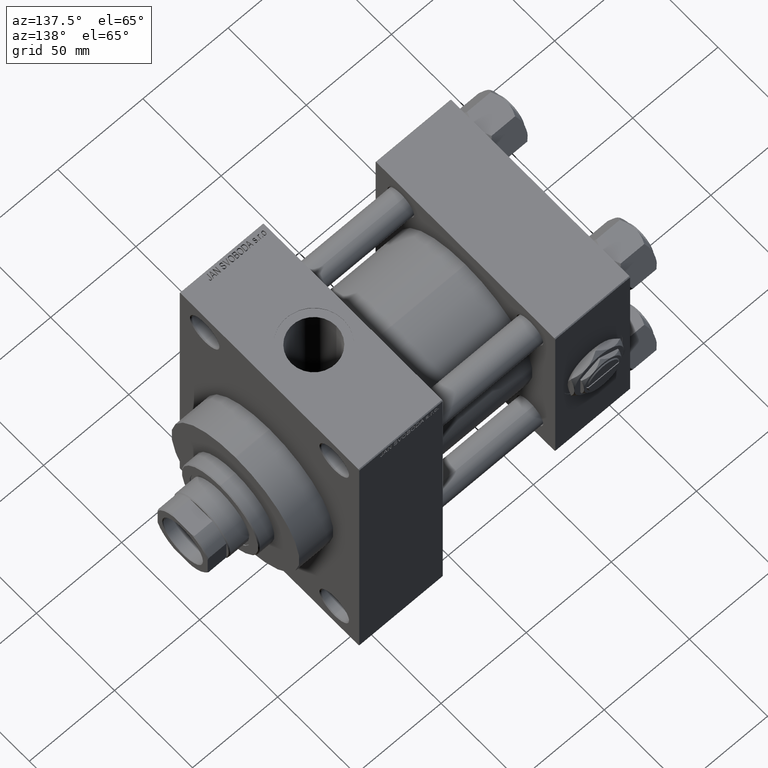
[diagram: clean part render]
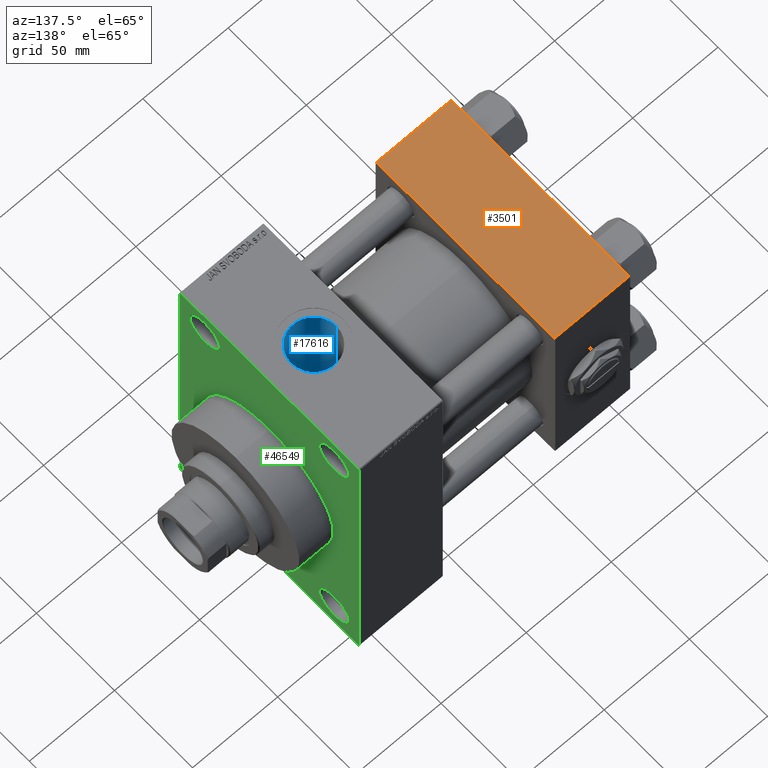
[diagram: same view with three faces highlighted in distinct colors, each labeled with its STEP entity id]
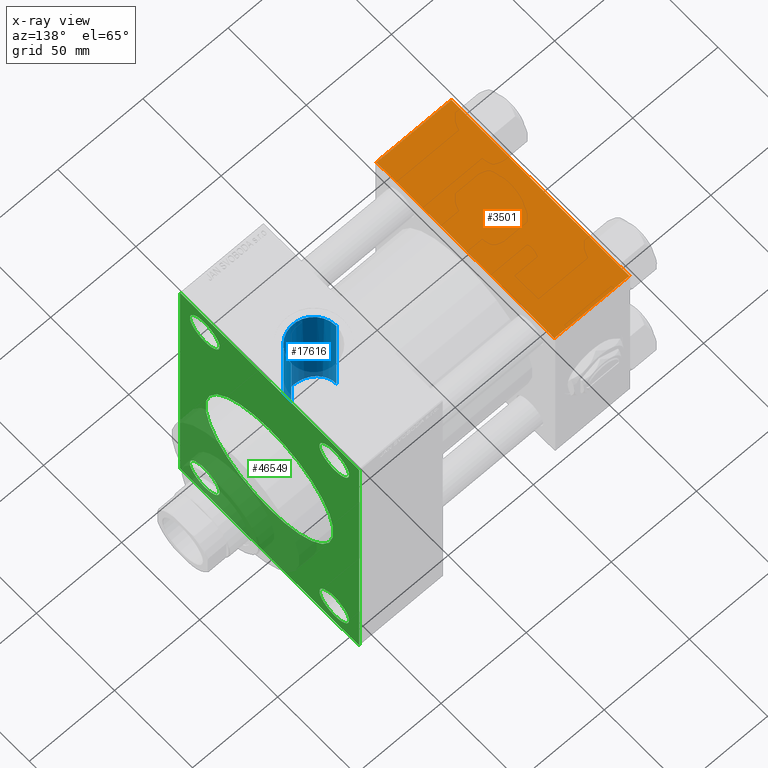
[diagram: x-ray of the same camera — body ghosted, the three highlighted faces saturated]
A machine part, auxiliary view with three faces highlighted in distinct colors.
The next image is the same camera in x-ray (body ghosted, the three faces saturated) — at least one of them is partly hidden behind the body in this view.
Their STEP definitions:

[orange] entity #3501 — the highlighted planar face has unit normal (0, 0, -1).
#778 = VECTOR ( 'NONE', #25886, 1000.000000000000000 ) ;
#2684 = VECTOR ( 'NONE', #26207, 1000.000000000000000 ) ;
#2835 = EDGE_CURVE ( 'NONE', #5143, #14152, #33585, .T. ) ;
#3501 = ADVANCED_FACE ( 'NONE', ( #7209 ), #47941, .F. ) ;
#5143 = VERTEX_POINT ( 'NONE', #12669 ) ;
#5993 = EDGE_CURVE ( 'NONE', #36024, #5143, #13287, .T. ) ;
#6273 = CARTESIAN_POINT ( 'NONE',  ( 0.000000000000000000, 57.00000000000000711, 57.50000000000000711 ) ) ;
#7209 = FACE_OUTER_BOUND ( 'NONE', #28770, .T. ) ;
#10891 = VERTEX_POINT ( 'NONE', #41833 ) ;
#11205 = VECTOR ( 'NONE', #43115, 1000.000000000000000 ) ;
#12669 = CARTESIAN_POINT ( 'NONE',  ( 0.000000000000000000, -57.00000000000003553, 57.49999999999999289 ) ) ;
#13287 = LINE ( 'NONE', #24471, #11205 ) ;
#14152 = VERTEX_POINT ( 'NONE', #34636 ) ;
#24471 = CARTESIAN_POINT ( 'NONE',  ( 0.000000000000000000, 57.49999999999999289, 57.50000000000000711 ) ) ;
#25615 = DIRECTION ( 'NONE',  ( -1.000000000000000000, 0.000000000000000000, 0.000000000000000000 ) ) ;
#25816 = DIRECTION ( 'NONE',  ( 0.000000000000000000, 1.000000000000000000, 1.206764157201257045E-16 ) ) ;
#25886 = DIRECTION ( 'NONE',  ( 1.000000000000000000, 0.000000000000000000, 0.000000000000000000 ) ) ;
#26207 = DIRECTION ( 'NONE',  ( 0.000000000000000000, -1.000000000000000000, -1.206764157201257045E-16 ) ) ;
#28105 = CARTESIAN_POINT ( 'NONE',  ( 0.000000000000000000, 57.00000000000000711, 57.50000000000000711 ) ) ;
#28770 = EDGE_LOOP ( 'NONE', ( #46519, #37196, #43465, #37504 ) ) ;
#29286 = DIRECTION ( 'NONE',  ( 0.000000000000000000, 1.206764157201257045E-16, -1.000000000000000000 ) ) ;
#33322 = AXIS2_PLACEMENT_3D ( 'NONE', #40215, #29286, #25816 ) ;
#33403 = CARTESIAN_POINT ( 'NONE',  ( 44.00000000000000000, 57.49999999999999289, 57.50000000000000711 ) ) ;
#33585 = LINE ( 'NONE', #37309, #778 ) ;
#34636 = CARTESIAN_POINT ( 'NONE',  ( 44.00000000000000000, -57.00000000000003553, 57.49999999999999289 ) ) ;
#36024 = VERTEX_POINT ( 'NONE', #28105 ) ;
#36885 = LINE ( 'NONE', #33403, #2684 ) ;
#37048 = LINE ( 'NONE', #6273, #46273 ) ;
#37196 = ORIENTED_EDGE ( 'NONE', *, *, #2835, .T. ) ;
#37309 = CARTESIAN_POINT ( 'NONE',  ( 44.00000000000000000, -57.00000000000003553, 57.49999999999999289 ) ) ;
#37504 = ORIENTED_EDGE ( 'NONE', *, *, #47775, .T. ) ;
#40215 = CARTESIAN_POINT ( 'NONE',  ( 44.00000000000000000, 57.49999999999999289, 57.50000000000000711 ) ) ;
#41833 = CARTESIAN_POINT ( 'NONE',  ( 44.00000000000000000, 57.00000000000000711, 57.50000000000000711 ) ) ;
#43115 = DIRECTION ( 'NONE',  ( 0.000000000000000000, -1.000000000000000000, -1.206764157201257045E-16 ) ) ;
#43465 = ORIENTED_EDGE ( 'NONE', *, *, #48566, .F. ) ;
#46273 = VECTOR ( 'NONE', #25615, 1000.000000000000000 ) ;
#46519 = ORIENTED_EDGE ( 'NONE', *, *, #5993, .T. ) ;
#47775 = EDGE_CURVE ( 'NONE', #10891, #36024, #37048, .T. ) ;
#47941 = PLANE ( 'NONE',  #33322 ) ;
#48566 = EDGE_CURVE ( 'NONE', #10891, #14152, #36885, .T. ) ;

[blue] entity #17616 — the highlighted cylindrical surface (edge-blend (fillet) strip) has radius 13.22 mm, axis along (0, 0, -1).
#187 = CARTESIAN_POINT ( 'NONE',  ( 143.4891427515922260, -8.055144359843698254, 35.08850325643998502 ) ) ;
#675 = CARTESIAN_POINT ( 'NONE',  ( 142.2683236211794053, -9.456123306897666225, 34.73961675537524485 ) ) ;
#727 = CARTESIAN_POINT ( 'NONE',  ( 119.7800000000000011, -1.086087741481131350E-14, 112.7999999999999829 ) ) ;
#1174 = CARTESIAN_POINT ( 'NONE',  ( 140.5356348427428941, -10.86845247487193866, 34.32099817610178860 ) ) ;
#2734 = VERTEX_POINT ( 'NONE', #36073 ) ;
#2779 = CARTESIAN_POINT ( 'NONE',  ( 126.2234386244904272, -11.39284893347530669, 28.29622104590160347 ) ) ;
#3030 = CARTESIAN_POINT ( 'NONE',  ( 120.6573864625835313, -4.834977203227584397, 30.12760479331261720 ) ) ;
#3927 = CARTESIAN_POINT ( 'NONE',  ( 145.5762609626179938, -4.092528755394254425, 35.76841822259746095 ) ) ;
#4544 = VERTEX_POINT ( 'NONE', #4939 ) ;
#4939 = CARTESIAN_POINT ( 'NONE',  ( 119.7800000000000011, -1.086087741481131350E-14, 89.79999999999998295 ) ) ;
#5511 = VECTOR ( 'NONE', #44385, 1000.000000000000000 ) ;
#6030 = CARTESIAN_POINT ( 'NONE',  ( 122.3230183722455138, -7.810479071823803743, 29.48561069758634190 ) ) ;
#6514 = CARTESIAN_POINT ( 'NONE',  ( 130.3349265898027909, -12.95789683450919760, 27.61085799903361959 ) ) ;
#6771 = CARTESIAN_POINT ( 'NONE',  ( 121.2888049357342339, -6.152518877594249425, 29.87635194004261407 ) ) ;
#7098 = AXIS2_PLACEMENT_3D ( 'NONE', #42313, #8307, #42802 ) ;
#7657 = CARTESIAN_POINT ( 'NONE',  ( 140.2234778375481312, -11.07831175427974379, 34.25365854375355212 ) ) ;
#7896 = CARTESIAN_POINT ( 'NONE',  ( 144.3340033522583497, -6.815280192024313344, 35.35054759480853903 ) ) ;
#8076 = EDGE_CURVE ( 'NONE', #4544, #34940, #31262, .T. ) ;
#8091 = VECTOR ( 'NONE', #46443, 1000.000000000000000 ) ;
#8307 = DIRECTION ( 'NONE',  ( -0.000000000000000000, -0.000000000000000000, -1.000000000000000000 ) ) ;
#8364 = DIRECTION ( 'NONE',  ( 0.000000000000000000, 0.000000000000000000, -1.000000000000000000 ) ) ;
#8383 = CARTESIAN_POINT ( 'NONE',  ( 142.7829955645538007, -8.922873027715086280, 34.88174282732672538 ) ) ;
#9253 = CARTESIAN_POINT ( 'NONE',  ( 123.2203172874389878, -8.947551960444558361, 29.16865783815234536 ) ) ;
#10223 = CARTESIAN_POINT ( 'NONE',  ( 128.9108056136110463, -12.58132053668447980, 27.78479549450236519 ) ) ;
#10465 = EDGE_CURVE ( 'NONE', #36487, #46177, #15302, .T. ) ;
#10767 = ORIENTED_EDGE ( 'NONE', *, *, #10465, .T. ) ;
#11371 = CARTESIAN_POINT ( 'NONE',  ( 137.2076088460675294, -12.53825874082049552, 33.74619856893892234 ) ) ;
#11471 = CARTESIAN_POINT ( 'NONE',  ( 120.0571384771800325, -2.704130925345935132, 30.38086169036233741 ) ) ;
#12318 = CARTESIAN_POINT ( 'NONE',  ( 146.2200000000000273, -9.241894346338509984E-15, 112.7999999999999829 ) ) ;
#12337 = CARTESIAN_POINT ( 'NONE',  ( 146.1544019816762443, -1.515576091947735238, 35.97576316411752373 ) ) ;
#12926 = CARTESIAN_POINT ( 'NONE',  ( 119.7800000000000011, 3.735152335644797090E-15, 30.50000000000000000 ) ) ;
#13442 = CARTESIAN_POINT ( 'NONE',  ( 135.7400000000000091, -12.93293470176048920, 27.62225914004861949 ) ) ;
#13577 = B_SPLINE_CURVE_WITH_KNOTS ( 'NONE', 3,
 ( #19541, #15804, #12337, #26762, #34698, #19778, #3927, #45411, #35181, #7896, #27485, #41673, #187, #8383, #675, #38434, #26518, #1174, #7657, #22791, #23277, #30958, #11371, #38673, #15564, #34457 ),
 .UNSPECIFIED., .F., .F.,
 ( 4, 2, 2, 2, 2, 2, 2, 2, 2, 2, 2, 2, 4 ),
 ( 0.01810032772820883984, 0.02036086973656282134, 0.02149114074073981903, 0.02262141174491681672, 0.02488195375327078782, 0.02601222475744779244, 0.02714249576162479360, 0.02940303776997874735, 0.03053330877415569300, 0.03166357977833263865, 0.03392412178668652301, 0.03505439279086347559, 0.03618466379504041430 ),
 .UNSPECIFIED. ) ;
#13940 = CARTESIAN_POINT ( 'NONE',  ( 133.7935798839907022, -13.23338642126744524, 27.47958799132000252 ) ) ;
#14186 = CARTESIAN_POINT ( 'NONE',  ( 130.8194127222318741, -13.04835861710616030, 27.56801161413727641 ) ) ;
#15167 = CARTESIAN_POINT ( 'NONE',  ( 119.9249887712033882, -1.968324950537289952, 30.43741289426054308 ) ) ;
#15296 = AXIS2_PLACEMENT_3D ( 'NONE', #22512, #37665, #49107 ) ;
#15302 = LINE ( 'NONE', #12318, #25511 ) ;
#15564 = CARTESIAN_POINT ( 'NONE',  ( 136.1130436000879058, -12.85390086390297171, 33.62713791769439808 ) ) ;
#15804 = CARTESIAN_POINT ( 'NONE',  ( 146.2200000000000273, -0.7632647160769636674, 36.00000000000000000 ) ) ;
#17167 = CARTESIAN_POINT ( 'NONE',  ( 134.7728848785530715, -13.13782983916530078, 27.52632580529387241 ) ) ;
#17565 = ORIENTED_EDGE ( 'NONE', *, *, #8076, .F. ) ;
#17616 = ADVANCED_FACE ( 'NONE', ( #26235 ), #30204, .F. ) ;
#18799 = EDGE_CURVE ( 'NONE', #22573, #34940, #20980, .T. ) ;
#18904 = CARTESIAN_POINT ( 'NONE',  ( 120.3336605936850816, -3.913778405700231833, 30.26347032903657919 ) ) ;
#19144 = CARTESIAN_POINT ( 'NONE',  ( 119.7800000000000153, -0.4934884814115302332, 30.50000000000000355 ) ) ;
#19541 = CARTESIAN_POINT ( 'NONE',  ( 146.2200000000000273, 4.408731805096607676E-15, 36.00000000000000000 ) ) ;
#19778 = CARTESIAN_POINT ( 'NONE',  ( 145.6891278366016707, -3.727918262643101333, 35.80834393886974709 ) ) ;
#20980 = B_SPLINE_CURVE_WITH_KNOTS ( 'NONE', 3,
 ( #13442, #17167, #13940, #25125, #40528, #14186, #6514, #28606, #10223, #25373, #24877, #2779, #40037, #43281, #9253, #6030, #21151, #36301, #6771, #3030, #18904, #11471, #45267, #15167, #33816, #38039, #19144, #22400 ),
 .UNSPECIFIED., .F., .F.,
 ( 4, 2, 2, 2, 2, 2, 2, 2, 2, 2, 2, 2, 2, 4 ),
 ( 0.01817501853417220065, 0.02113533814074457923, 0.02261549794403076852, 0.02409565774731695781, 0.02557581755060314363, 0.02705597735388933639, 0.03001629696046170803, 0.03297661656703407967, 0.03445677637032025509, 0.03593693617360642356, 0.03889725578017878826, 0.03963733568182188638, 0.04037741558346498449, 0.04185757538675117378 ),
 .UNSPECIFIED. ) ;
#21106 = ORIENTED_EDGE ( 'NONE', *, *, #35384, .T. ) ;
#21151 = CARTESIAN_POINT ( 'NONE',  ( 122.0434615026330221, -7.413683856886505552, 29.58833678893007146 ) ) ;
#21504 = CARTESIAN_POINT ( 'NONE',  ( 146.2200000000000273, -9.241894346338509984E-15, 89.79999999999998295 ) ) ;
#22400 = CARTESIAN_POINT ( 'NONE',  ( 119.7800000000000011, 3.735152335644797090E-15, 30.50000000000000000 ) ) ;
#22512 = CARTESIAN_POINT ( 'NONE',  ( 133.0000000000000000, -1.086087741481131350E-14, 112.7999999999999829 ) ) ;
#22573 = VERTEX_POINT ( 'NONE', #39981 ) ;
#22791 = CARTESIAN_POINT ( 'NONE',  ( 139.2689392453522430, -11.66300537238692314, 34.06086853725207675 ) ) ;
#23277 = CARTESIAN_POINT ( 'NONE',  ( 138.6039743856111386, -11.99680468088063812, 33.94354112271071955 ) ) ;
#23947 = CARTESIAN_POINT ( 'NONE',  ( 146.2200000000000273, 4.408731805096607676E-15, 36.00000000000000000 ) ) ;
#24877 = CARTESIAN_POINT ( 'NONE',  ( 127.5318111534776477, -12.04594987798921579, 28.02143598411491254 ) ) ;
#25125 = CARTESIAN_POINT ( 'NONE',  ( 132.3058823230128382, -13.21107762266989738, 27.49031640659328346 ) ) ;
#25303 = ORIENTED_EDGE ( 'NONE', *, *, #39950, .F. ) ;
#25373 = CARTESIAN_POINT ( 'NONE',  ( 127.9856869291995451, -12.24205054737453580, 27.93593895886880318 ) ) ;
#25511 = VECTOR ( 'NONE', #8364, 1000.000000000000000 ) ;
#26235 = FACE_OUTER_BOUND ( 'NONE', #28868, .T. ) ;
#26518 = CARTESIAN_POINT ( 'NONE',  ( 141.1396695021039136, -10.42376285600500552, 34.45866136291866155 ) ) ;
#26762 = CARTESIAN_POINT ( 'NONE',  ( 145.9615557504130550, -2.628343228240504370, 35.90584824798534669 ) ) ;
#27485 = CARTESIAN_POINT ( 'NONE',  ( 144.1369082302657887, -7.132913908065001252, 35.28770313236165634 ) ) ;
#28606 = CARTESIAN_POINT ( 'NONE',  ( 129.3806226936400776, -12.72437874985378947, 27.71924882183590810 ) ) ;
#28868 = EDGE_LOOP ( 'NONE', ( #47215, #10767, #21106, #25303, #31311, #17565 ) ) ;
#30204 = CYLINDRICAL_SURFACE ( 'NONE', #15296, 13.22000000000000952 ) ;
#30958 = CARTESIAN_POINT ( 'NONE',  ( 137.5622627804116576, -12.41346128962093331, 33.79242230791055590 ) ) ;
#31262 = LINE ( 'NONE', #727, #8091 ) ;
#31311 = ORIENTED_EDGE ( 'NONE', *, *, #18799, .T. ) ;
#33816 = CARTESIAN_POINT ( 'NONE',  ( 119.8904211679684551, -1.722922135315099190, 30.45229114395320735 ) ) ;
#34457 = CARTESIAN_POINT ( 'NONE',  ( 135.7400000000000091, -12.93293470176048920, 33.59671412504501831 ) ) ;
#34698 = CARTESIAN_POINT ( 'NONE',  ( 145.8814408249625956, -2.996635129533369302, 35.87694312671834496 ) ) ;
#34940 = VERTEX_POINT ( 'NONE', #12926 ) ;
#35181 = CARTESIAN_POINT ( 'NONE',  ( 144.8836492013384145, -5.839896060611126316, 35.52932100949514904 ) ) ;
#35384 = EDGE_CURVE ( 'NONE', #46177, #2734, #13577, .T. ) ;
#36073 = CARTESIAN_POINT ( 'NONE',  ( 135.7400000000000091, -12.93293470176048920, 33.59671412504501831 ) ) ;
#36301 = CARTESIAN_POINT ( 'NONE',  ( 121.5247582497704855, -6.582345398711117568, 29.78430981770568664 ) ) ;
#36487 = VERTEX_POINT ( 'NONE', #21504 ) ;
#37665 = DIRECTION ( 'NONE',  ( 0.000000000000000000, 0.000000000000000000, -1.000000000000000000 ) ) ;
#37995 = CIRCLE ( 'NONE', #7098, 13.22000000000000952 ) ;
#38039 = CARTESIAN_POINT ( 'NONE',  ( 119.8075453442667424, -0.9859064391995653320, 30.48803002647009919 ) ) ;
#38434 = CARTESIAN_POINT ( 'NONE',  ( 141.4301524439943023, -10.19013505585470192, 34.52862519156883536 ) ) ;
#38673 = CARTESIAN_POINT ( 'NONE',  ( 136.4827252521805008, -12.75862568112616025, 33.66350131574142068 ) ) ;
#39167 = EDGE_CURVE ( 'NONE', #36487, #4544, #37995, .T. ) ;
#39950 = EDGE_CURVE ( 'NONE', #22573, #2734, #41637, .T. ) ;
#39981 = CARTESIAN_POINT ( 'NONE',  ( 135.7400000000000091, -12.93293470176048920, 27.62225914004861949 ) ) ;
#40037 = CARTESIAN_POINT ( 'NONE',  ( 125.4103075940778353, -10.86814745508434044, 28.50545567885846410 ) ) ;
#40528 = CARTESIAN_POINT ( 'NONE',  ( 131.8037034507516125, -13.17510903343229600, 27.50766127672410022 ) ) ;
#41389 = CARTESIAN_POINT ( 'NONE',  ( 135.7400000000000091, -12.93293470176048920, 112.7999999999999829 ) ) ;
#41637 = LINE ( 'NONE', #41389, #5511 ) ;
#41673 = CARTESIAN_POINT ( 'NONE',  ( 143.7144084780975959, -7.753104972441714260, 35.15664683191293705 ) ) ;
#42313 = CARTESIAN_POINT ( 'NONE',  ( 133.0000000000000000, -1.086087741481131350E-14, 89.79999999999998295 ) ) ;
#42802 = DIRECTION ( 'NONE',  ( 1.000000000000000000, 0.000000000000000000, 0.000000000000000000 ) ) ;
#43281 = CARTESIAN_POINT ( 'NONE',  ( 123.8972371638811865, -9.636377362439814576, 28.94508358760566225 ) ) ;
#44385 = DIRECTION ( 'NONE',  ( -0.000000000000000000, -0.000000000000000000, 1.000000000000000000 ) ) ;
#45267 = CARTESIAN_POINT ( 'NONE',  ( 120.0082494278151160, -2.458584717718188983, 30.40173955536769412 ) ) ;
#45411 = CARTESIAN_POINT ( 'NONE',  ( 145.1948937127548049, -5.159834589306234953, 35.63551938799943741 ) ) ;
#46177 = VERTEX_POINT ( 'NONE', #23947 ) ;
#46443 = DIRECTION ( 'NONE',  ( 0.000000000000000000, 0.000000000000000000, -1.000000000000000000 ) ) ;
#47215 = ORIENTED_EDGE ( 'NONE', *, *, #39167, .F. ) ;
#49107 = DIRECTION ( 'NONE',  ( -1.000000000000000000, 0.000000000000000000, 0.000000000000000000 ) ) ;

[green] entity #46549 — the highlighted planar face has unit normal (-1, 0, 0).
#140 = CARTESIAN_POINT ( 'NONE',  ( 159.0000000000000000, -41.49999999999999289, 65.00000000000000000 ) ) ;
#494 = DIRECTION ( 'NONE',  ( 0.000000000000000000, 0.000000000000000000, 1.000000000000000000 ) ) ;
#1612 = ORIENTED_EDGE ( 'NONE', *, *, #13810, .F. ) ;
#1705 = ORIENTED_EDGE ( 'NONE', *, *, #45088, .T. ) ;
#1755 = VECTOR ( 'NONE', #29628, 999.9999999999998863 ) ;
#2028 = CARTESIAN_POINT ( 'NONE',  ( 159.0000000000000000, 56.99999999999994316, 89.99999999999998579 ) ) ;
#2502 = CIRCLE ( 'NONE', #4903, 9.500000000000008882 ) ;
#3159 = CARTESIAN_POINT ( 'NONE',  ( 159.0000000000000000, -41.49999999999999289, -83.99999999999998579 ) ) ;
#3411 = CIRCLE ( 'NONE', #13649, 9.500000000000008882 ) ;
#3486 = EDGE_CURVE ( 'NONE', #34313, #22490, #10667, .T. ) ;
#3739 = CARTESIAN_POINT ( 'NONE',  ( 159.0000000000000000, -56.99999999999998579, 89.99999999999997158 ) ) ;
#4198 = VECTOR ( 'NONE', #14506, 999.9999999999998863 ) ;
#4903 = AXIS2_PLACEMENT_3D ( 'NONE', #13624, #35991, #47687 ) ;
#5043 = FACE_BOUND ( 'NONE', #11104, .T. ) ;
#5844 = ORIENTED_EDGE ( 'NONE', *, *, #35131, .T. ) ;
#5963 = VERTEX_POINT ( 'NONE', #9578 ) ;
#6389 = EDGE_CURVE ( 'NONE', #36174, #45571, #2502, .T. ) ;
#6502 = FACE_OUTER_BOUND ( 'NONE', #29038, .T. ) ;
#6623 = CARTESIAN_POINT ( 'NONE',  ( 159.0000000000000000, 57.49999999999997868, -89.49999999999990052 ) ) ;
#6938 = VERTEX_POINT ( 'NONE', #16632 ) ;
#7316 = AXIS2_PLACEMENT_3D ( 'NONE', #40382, #21008, #32430 ) ;
#7616 = ORIENTED_EDGE ( 'NONE', *, *, #12747, .F. ) ;
#7855 = ORIENTED_EDGE ( 'NONE', *, *, #3486, .T. ) ;
#7914 = VERTEX_POINT ( 'NONE', #3739 ) ;
#8018 = DIRECTION ( 'NONE',  ( -1.000000000000000000, 0.000000000000000000, -0.000000000000000000 ) ) ;
#8508 = ORIENTED_EDGE ( 'NONE', *, *, #27287, .T. ) ;
#8554 = EDGE_CURVE ( 'NONE', #19667, #38792, #34274, .T. ) ;
#8748 = CARTESIAN_POINT ( 'NONE',  ( 159.0000000000000000, 41.50000000000000711, -64.99999999999998579 ) ) ;
#9235 = CIRCLE ( 'NONE', #33018, 9.500000000000008882 ) ;
#9482 = DIRECTION ( 'NONE',  ( -0.000000000000000000, 0.000000000000000000, 1.000000000000000000 ) ) ;
#9578 = CARTESIAN_POINT ( 'NONE',  ( 159.0000000000000000, -41.49999999999999289, 84.00000000000001421 ) ) ;
#9816 = EDGE_CURVE ( 'NONE', #22490, #31829, #14255, .T. ) ;
#9891 = CARTESIAN_POINT ( 'NONE',  ( 159.0000000000000000, 0.000000000000000000, 0.000000000000000000 ) ) ;
#9991 = VERTEX_POINT ( 'NONE', #33642 ) ;
#10221 = DIRECTION ( 'NONE',  ( 0.000000000000000000, 0.000000000000000000, 1.000000000000000000 ) ) ;
#10667 = LINE ( 'NONE', #26065, #30145 ) ;
#10880 = DIRECTION ( 'NONE',  ( 0.000000000000000000, 0.000000000000000000, -1.000000000000000000 ) ) ;
#11104 = EDGE_LOOP ( 'NONE', ( #24838, #1705 ) ) ;
#11945 = EDGE_CURVE ( 'NONE', #24047, #28738, #13958, .T. ) ;
#12212 = CARTESIAN_POINT ( 'NONE',  ( 159.0000000000000000, 57.49999999999997158, 89.99999999999998579 ) ) ;
#12447 = LINE ( 'NONE', #12212, #48976 ) ;
#12632 = EDGE_CURVE ( 'NONE', #41042, #21902, #3411, .T. ) ;
#12747 = EDGE_CURVE ( 'NONE', #24047, #31829, #25829, .T. ) ;
#13071 = DIRECTION ( 'NONE',  ( -1.000000000000000000, 0.000000000000000000, -0.000000000000000000 ) ) ;
#13393 = DIRECTION ( 'NONE',  ( 0.000000000000000000, 0.000000000000000000, 1.000000000000000000 ) ) ;
#13624 = CARTESIAN_POINT ( 'NONE',  ( 159.0000000000000000, 41.50000000000000711, -74.50000000000000000 ) ) ;
#13640 = CARTESIAN_POINT ( 'NONE',  ( 159.0000000000000000, 57.49999999999997868, -90.00000000000000000 ) ) ;
#13649 = AXIS2_PLACEMENT_3D ( 'NONE', #16390, #47458, #13393 ) ;
#13758 = CARTESIAN_POINT ( 'NONE',  ( 159.0000000000000000, -56.99999999999996447, -90.00000000000001421 ) ) ;
#13810 = EDGE_CURVE ( 'NONE', #9991, #33107, #18501, .T. ) ;
#13958 = LINE ( 'NONE', #14707, #1755 ) ;
#14073 = DIRECTION ( 'NONE',  ( 0.000000000000000000, 0.000000000000000000, 1.000000000000000000 ) ) ;
#14120 = DIRECTION ( 'NONE',  ( 0.000000000000000000, 0.000000000000000000, -1.000000000000000000 ) ) ;
#14172 = FACE_BOUND ( 'NONE', #35689, .T. ) ;
#14255 = LINE ( 'NONE', #13758, #4198 ) ;
#14506 = DIRECTION ( 'NONE',  ( 0.000000000000000000, 0.7071067811865574537, -0.7071067811865376918 ) ) ;
#14707 = CARTESIAN_POINT ( 'NONE',  ( 159.0000000000000000, 57.49999999999997868, -89.49999999999995737 ) ) ;
#14877 = ORIENTED_EDGE ( 'NONE', *, *, #12632, .T. ) ;
#15098 = CARTESIAN_POINT ( 'NONE',  ( 159.0000000000000000, 57.49999999999997158, 89.99999999999998579 ) ) ;
#15683 = CARTESIAN_POINT ( 'NONE',  ( 159.0000000000000000, -56.99999999999996447, -90.00000000000001421 ) ) ;
#16358 = ORIENTED_EDGE ( 'NONE', *, *, #47814, .T. ) ;
#16390 = CARTESIAN_POINT ( 'NONE',  ( 159.0000000000000000, -41.49999999999999289, -74.49999999999998579 ) ) ;
#16398 = ORIENTED_EDGE ( 'NONE', *, *, #19324, .F. ) ;
#16412 = DIRECTION ( 'NONE',  ( 0.000000000000000000, 0.000000000000000000, 1.000000000000000000 ) ) ;
#16632 = CARTESIAN_POINT ( 'NONE',  ( 159.0000000000000000, 57.49999999999997158, 89.49999999999995737 ) ) ;
#17263 = EDGE_CURVE ( 'NONE', #6938, #46651, #33300, .T. ) ;
#18032 = EDGE_LOOP ( 'NONE', ( #14877, #16358 ) ) ;
#18104 = DIRECTION ( 'NONE',  ( 1.000000000000000000, 0.000000000000000000, 0.000000000000000000 ) ) ;
#18457 = CIRCLE ( 'NONE', #39982, 9.500000000000008882 ) ;
#18501 = CIRCLE ( 'NONE', #23255, 41.00000000000000000 ) ;
#18504 = CIRCLE ( 'NONE', #46275, 41.00000000000000000 ) ;
#18583 = CARTESIAN_POINT ( 'NONE',  ( 159.0000000000000000, 41.50000000000000711, -84.00000000000000000 ) ) ;
#18682 = ORIENTED_EDGE ( 'NONE', *, *, #31810, .F. ) ;
#19272 = CARTESIAN_POINT ( 'NONE',  ( 159.0000000000000000, 56.99999999999992895, -90.00000000000000000 ) ) ;
#19324 = EDGE_CURVE ( 'NONE', #33107, #9991, #18504, .T. ) ;
#19360 = DIRECTION ( 'NONE',  ( -1.000000000000000000, 0.000000000000000000, -0.000000000000000000 ) ) ;
#19595 = ORIENTED_EDGE ( 'NONE', *, *, #21294, .T. ) ;
#19667 = VERTEX_POINT ( 'NONE', #22530 ) ;
#20165 = FACE_BOUND ( 'NONE', #18032, .T. ) ;
#21008 = DIRECTION ( 'NONE',  ( -1.000000000000000000, 0.000000000000000000, -0.000000000000000000 ) ) ;
#21202 = ORIENTED_EDGE ( 'NONE', *, *, #6389, .T. ) ;
#21294 = EDGE_CURVE ( 'NONE', #38792, #19667, #18457, .T. ) ;
#21535 = CARTESIAN_POINT ( 'NONE',  ( 159.0000000000000000, 41.50000000000000711, 74.50000000000001421 ) ) ;
#21902 = VERTEX_POINT ( 'NONE', #29624 ) ;
#22101 = CARTESIAN_POINT ( 'NONE',  ( 159.0000000000000000, 0.000000000000000000, 0.000000000000000000 ) ) ;
#22371 = CIRCLE ( 'NONE', #7316, 9.500000000000008882 ) ;
#22405 = AXIS2_PLACEMENT_3D ( 'NONE', #39776, #40770, #9482 ) ;
#22490 = VERTEX_POINT ( 'NONE', #41057 ) ;
#22530 = CARTESIAN_POINT ( 'NONE',  ( 159.0000000000000000, 41.50000000000000711, 65.00000000000000000 ) ) ;
#23255 = AXIS2_PLACEMENT_3D ( 'NONE', #9891, #38184, #10880 ) ;
#23401 = CARTESIAN_POINT ( 'NONE',  ( 159.0000000000000000, 41.50000000000000711, 74.50000000000001421 ) ) ;
#23584 = EDGE_LOOP ( 'NONE', ( #16398, #1612 ) ) ;
#23808 = CARTESIAN_POINT ( 'NONE',  ( 159.0000000000000000, 41.50000000000000711, -74.50000000000000000 ) ) ;
#24047 = VERTEX_POINT ( 'NONE', #19272 ) ;
#24593 = ORIENTED_EDGE ( 'NONE', *, *, #11945, .T. ) ;
#24838 = ORIENTED_EDGE ( 'NONE', *, *, #29560, .T. ) ;
#25577 = VECTOR ( 'NONE', #29555, 1000.000000000000000 ) ;
#25829 = LINE ( 'NONE', #13640, #25577 ) ;
#26065 = CARTESIAN_POINT ( 'NONE',  ( 159.0000000000000000, -57.50000000000002132, 89.99999999999997158 ) ) ;
#26295 = LINE ( 'NONE', #15098, #31351 ) ;
#27287 = EDGE_CURVE ( 'NONE', #46651, #7914, #26295, .T. ) ;
#27289 = VECTOR ( 'NONE', #28387, 1000.000000000000000 ) ;
#28387 = DIRECTION ( 'NONE',  ( -0.000000000000000000, -0.7071067811865524577, -0.7071067811865426878 ) ) ;
#28738 = VERTEX_POINT ( 'NONE', #6623 ) ;
#29038 = EDGE_LOOP ( 'NONE', ( #7855, #46492, #7616, #24593, #18682, #32085, #8508, #36719 ) ) ;
#29101 = DIRECTION ( 'NONE',  ( -1.000000000000000000, 0.000000000000000000, -0.000000000000000000 ) ) ;
#29555 = DIRECTION ( 'NONE',  ( 0.000000000000000000, -1.000000000000000000, -1.206764157201257045E-16 ) ) ;
#29560 = EDGE_CURVE ( 'NONE', #43323, #5963, #9235, .T. ) ;
#29624 = CARTESIAN_POINT ( 'NONE',  ( 159.0000000000000000, -41.49999999999999289, -64.99999999999997158 ) ) ;
#29628 = DIRECTION ( 'NONE',  ( -0.000000000000000000, 0.7071067811865574537, 0.7071067811865376918 ) ) ;
#30145 = VECTOR ( 'NONE', #14120, 1000.000000000000000 ) ;
#31351 = VECTOR ( 'NONE', #34224, 1000.000000000000000 ) ;
#31810 = EDGE_CURVE ( 'NONE', #6938, #28738, #12447, .T. ) ;
#31829 = VERTEX_POINT ( 'NONE', #15683 ) ;
#32085 = ORIENTED_EDGE ( 'NONE', *, *, #17263, .T. ) ;
#32255 = AXIS2_PLACEMENT_3D ( 'NONE', #23808, #19360, #494 ) ;
#32349 = CARTESIAN_POINT ( 'NONE',  ( 159.0000000000000000, -57.50000000000002132, 89.49999999999994316 ) ) ;
#32430 = DIRECTION ( 'NONE',  ( 0.000000000000000000, 0.000000000000000000, 1.000000000000000000 ) ) ;
#32736 = CARTESIAN_POINT ( 'NONE',  ( 159.0000000000000000, 41.50000000000000711, 84.00000000000001421 ) ) ;
#32962 = DIRECTION ( 'NONE',  ( -1.000000000000000000, 0.000000000000000000, -0.000000000000000000 ) ) ;
#33018 = AXIS2_PLACEMENT_3D ( 'NONE', #46884, #13071, #46401 ) ;
#33107 = VERTEX_POINT ( 'NONE', #38974 ) ;
#33300 = LINE ( 'NONE', #41260, #43110 ) ;
#33306 = FACE_BOUND ( 'NONE', #23584, .T. ) ;
#33642 = CARTESIAN_POINT ( 'NONE',  ( 159.0000000000000000, 5.021051876504148963E-15, -41.00000000000000000 ) ) ;
#34224 = DIRECTION ( 'NONE',  ( 0.000000000000000000, -1.000000000000000000, -1.206764157201257291E-16 ) ) ;
#34274 = CIRCLE ( 'NONE', #43821, 9.500000000000008882 ) ;
#34313 = VERTEX_POINT ( 'NONE', #34989 ) ;
#34328 = DIRECTION ( 'NONE',  ( 0.000000000000000000, 3.854941057726238467E-17, -1.000000000000000000 ) ) ;
#34989 = CARTESIAN_POINT ( 'NONE',  ( 159.0000000000000000, -57.50000000000002132, 89.49999999999994316 ) ) ;
#35131 = EDGE_CURVE ( 'NONE', #45571, #36174, #47365, .T. ) ;
#35689 = EDGE_LOOP ( 'NONE', ( #47510, #19595 ) ) ;
#35991 = DIRECTION ( 'NONE',  ( -1.000000000000000000, 0.000000000000000000, -0.000000000000000000 ) ) ;
#36174 = VERTEX_POINT ( 'NONE', #18583 ) ;
#36719 = ORIENTED_EDGE ( 'NONE', *, *, #48684, .T. ) ;
#37298 = CARTESIAN_POINT ( 'NONE',  ( 159.0000000000000000, -41.49999999999999289, -74.49999999999998579 ) ) ;
#38184 = DIRECTION ( 'NONE',  ( 1.000000000000000000, 0.000000000000000000, 0.000000000000000000 ) ) ;
#38792 = VERTEX_POINT ( 'NONE', #32736 ) ;
#38974 = CARTESIAN_POINT ( 'NONE',  ( 159.0000000000000000, 0.000000000000000000, 41.00000000000000000 ) ) ;
#39776 = CARTESIAN_POINT ( 'NONE',  ( 159.0000000000000000, 0.000000000000000000, 0.000000000000000000 ) ) ;
#39982 = AXIS2_PLACEMENT_3D ( 'NONE', #21535, #32962, #14073 ) ;
#40382 = CARTESIAN_POINT ( 'NONE',  ( 159.0000000000000000, -41.49999999999999289, 74.50000000000001421 ) ) ;
#40770 = DIRECTION ( 'NONE',  ( -1.000000000000000000, 0.000000000000000000, -0.000000000000000000 ) ) ;
#41042 = VERTEX_POINT ( 'NONE', #3159 ) ;
#41057 = CARTESIAN_POINT ( 'NONE',  ( 159.0000000000000000, -57.50000000000002132, -89.49999999999991473 ) ) ;
#41260 = CARTESIAN_POINT ( 'NONE',  ( 159.0000000000000000, 56.99999999999994316, 89.99999999999998579 ) ) ;
#41504 = DIRECTION ( 'NONE',  ( 0.000000000000000000, -0.7071067811865474617, 0.7071067811865474617 ) ) ;
#42315 = AXIS2_PLACEMENT_3D ( 'NONE', #37298, #29101, #10221 ) ;
#42438 = EDGE_LOOP ( 'NONE', ( #21202, #5844 ) ) ;
#43110 = VECTOR ( 'NONE', #41504, 1000.000000000000114 ) ;
#43323 = VERTEX_POINT ( 'NONE', #140 ) ;
#43754 = PLANE ( 'NONE',  #22405 ) ;
#43791 = LINE ( 'NONE', #32349, #27289 ) ;
#43821 = AXIS2_PLACEMENT_3D ( 'NONE', #23401, #8018, #16412 ) ;
#45088 = EDGE_CURVE ( 'NONE', #5963, #43323, #22371, .T. ) ;
#45571 = VERTEX_POINT ( 'NONE', #8748 ) ;
#46166 = DIRECTION ( 'NONE',  ( 0.000000000000000000, 0.000000000000000000, -1.000000000000000000 ) ) ;
#46275 = AXIS2_PLACEMENT_3D ( 'NONE', #22101, #18104, #46166 ) ;
#46401 = DIRECTION ( 'NONE',  ( 0.000000000000000000, 0.000000000000000000, 1.000000000000000000 ) ) ;
#46492 = ORIENTED_EDGE ( 'NONE', *, *, #9816, .T. ) ;
#46549 = ADVANCED_FACE ( 'NONE', ( #5043, #20165, #46770, #14172, #33306, #6502 ), #43754, .F. ) ;
#46651 = VERTEX_POINT ( 'NONE', #2028 ) ;
#46770 = FACE_BOUND ( 'NONE', #42438, .T. ) ;
#46884 = CARTESIAN_POINT ( 'NONE',  ( 159.0000000000000000, -41.49999999999999289, 74.50000000000001421 ) ) ;
#47365 = CIRCLE ( 'NONE', #32255, 9.500000000000008882 ) ;
#47458 = DIRECTION ( 'NONE',  ( -1.000000000000000000, 0.000000000000000000, -0.000000000000000000 ) ) ;
#47510 = ORIENTED_EDGE ( 'NONE', *, *, #8554, .T. ) ;
#47687 = DIRECTION ( 'NONE',  ( 0.000000000000000000, 0.000000000000000000, 1.000000000000000000 ) ) ;
#47814 = EDGE_CURVE ( 'NONE', #21902, #41042, #47870, .T. ) ;
#47870 = CIRCLE ( 'NONE', #42315, 9.500000000000008882 ) ;
#48684 = EDGE_CURVE ( 'NONE', #7914, #34313, #43791, .T. ) ;
#48976 = VECTOR ( 'NONE', #34328, 1000.000000000000000 ) ;